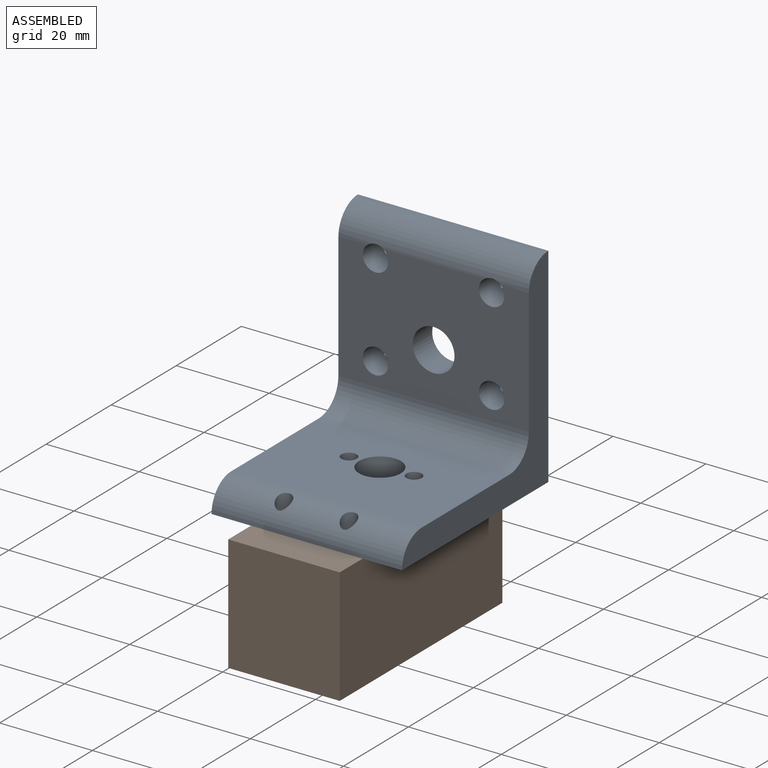
[diagram: assembled view]
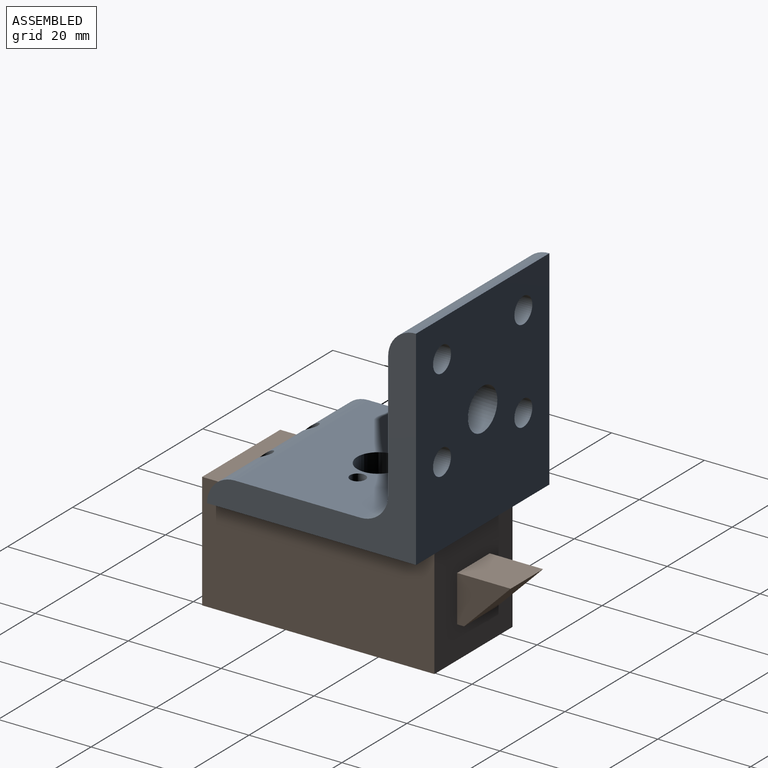
[diagram: assembled view, second angle]
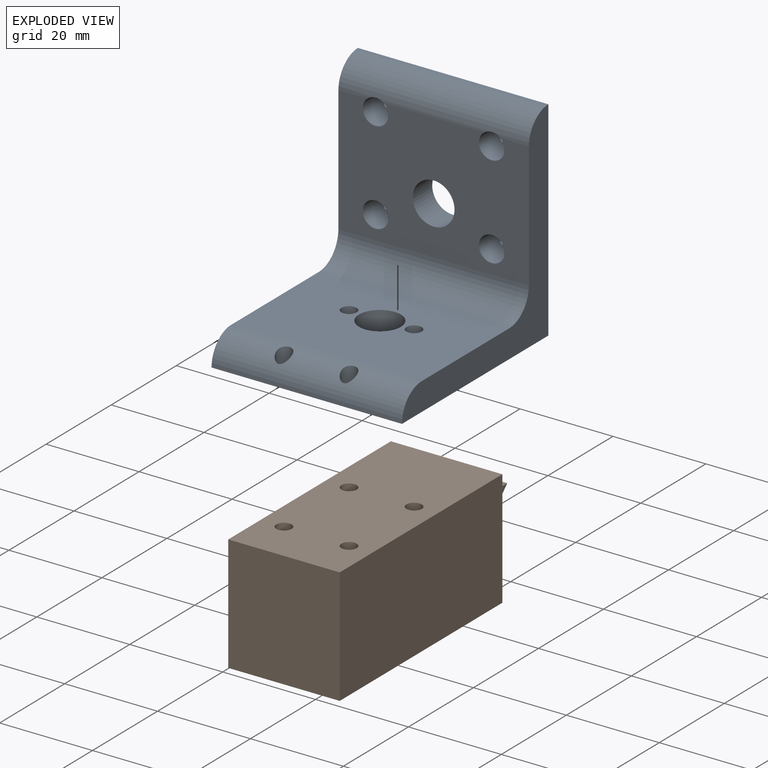
[diagram: exploded view]
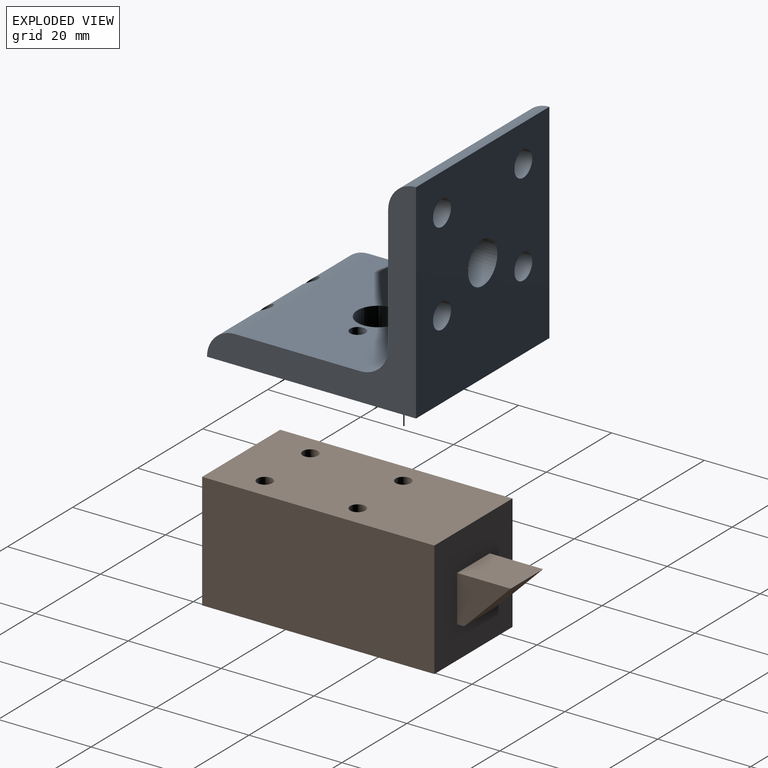
[diagram: exploded view, second angle]
ASSEMBLY  parts=2 mates=2
PART A: 19 faces, bbox 45x45x41 mm
  f0: cylinder r=6mm len=41mm, axis (0,0,-1), area 382.5mm2, adj f4,f5,f9,f10,f15,f16
  f1: cylinder r=6mm len=41mm, axis (0,0,-1), area 366.1mm2, adj f6,f7,f9,f10,f12,f13
  f2: cylinder r=4.5mm len=9mm, axis (-1,0,0), area 169.6mm2, adj f4,f5
  f3: cylinder r=4.5mm len=9mm, axis (0,-1,0), area 169.6mm2, adj f6,f7
  f4: plane 41x27mm, normal (1,0,0), area 952.2mm2, adj f0,f2,f8,f9,f10,f15,f16,f17
  f5: plane 45x41mm, normal (-1,0,0), area 1686.3mm2, adj f0,f2,f6,f9,f10,f15,f16,f17
  f6: plane 45x41mm, normal (0,-1,0), area 1747.2mm2, adj f1,f3,f5,f9,f10,f11,f12,f13
  f7: plane 41x27mm, normal (0,1,0), area 1026.3mm2, adj f1,f3,f8,f9,f10,f11,f14
  f8: cylinder r=6mm len=41mm, axis (0,0,-1), area 386.4mm2, adj f4,f7,f9,f10
  f9: plane 45x45mm, normal (0,0,1), area 496.3mm2, adj f0,f1,f4,f5,f6,f7,f8
  f10: plane 45x45mm, normal (0,0,-1), area 496.3mm2, adj f0,f1,f4,f5,f6,f7,f8
  f11: cylinder r=1.65mm len=6mm, axis (0,-1,0), area 62.2mm2, adj f6,f7
  f12: cylinder r=1.65mm len=5.85mm, axis (0,-1,0), area 52mm2, adj f1,f6
  f13: cylinder r=1.65mm len=5.85mm, axis (0,-1,0), area 52mm2, adj f1,f6
  f14: cylinder r=1.65mm len=6mm, axis (0,-1,0), area 62.2mm2, adj f6,f7
  f15: cylinder r=2.75mm len=6mm, axis (-1,0,0), area 103.6mm2, adj f0,f4,f5
  f16: cylinder r=2.75mm len=6mm, axis (-1,0,0), area 103.6mm2, adj f0,f4,f5
  f17: cylinder r=2.75mm len=6mm, axis (-1,0,0), area 103.7mm2, adj f4,f5
  f18: cylinder r=2.75mm len=6mm, axis (-1,0,0), area 103.7mm2, adj f4,f5
PART B: 19 faces, bbox 24x61.5x25 mm
  f0: plane 50x24mm, normal (0,0,-1), area 1165.8mm2, adj f1,f2,f3,f4,f12,f14,f16,f18
  f1: plane 50x25mm, normal (1,0,0), area 1250mm2, adj f0,f2,f3,f10
  f2: plane 25x24mm, normal (0,1,0), area 600mm2, adj f0,f1,f4,f10
  f3: plane 25x24mm, normal (0,-1,0), area 500mm2, adj f0,f1,f4,f5,f7,f8,f9,f10
  f4: plane 50x25mm, normal (-1,0,0), area 1250mm2, adj f0,f2,f3,f10
  f5: plane 10x1.5mm, normal (0,0,1), area 15mm2, adj f3,f6,f8,f9
  f6: plane 10x10mm, normal (0,-0.71,0.71), area 141.4mm2, adj f5,f7,f8,f9
  f7: plane 11.5x10mm, normal (0,0,-1), area 115mm2, adj f3,f6,f8,f9
  f8: plane 11.5x10mm, normal (1,0,0), area 65mm2, adj f3,f5,f6,f7
  f9: plane 11.5x10mm, normal (-1,0,0), area 65mm2, adj f3,f5,f6,f7
  f10: plane 50x24mm, normal (0,0,1), area 1200mm2, adj f1,f2,f3,f4
  f11: cone r=0mm half-angle=59deg, axis (0,0,-1), area 10mm2, adj f12
  f12: cylinder r=1.65mm len=13.5mm, axis (0,0,-1), area 140mm2, adj f0,f11
  f13: cone r=0mm half-angle=59deg, axis (0,0,-1), area 10mm2, adj f14
  f14: cylinder r=1.65mm len=13.5mm, axis (0,0,-1), area 140mm2, adj f0,f13
  f15: cone r=0mm half-angle=59deg, axis (0,0,-1), area 10mm2, adj f16
  f16: cylinder r=1.65mm len=13.5mm, axis (0,0,-1), area 140mm2, adj f0,f15
  f17: cone r=0mm half-angle=59deg, axis (0,0,-1), area 10mm2, adj f18
  f18: cylinder r=1.65mm len=13.5mm, axis (0,0,-1), area 140mm2, adj f0,f17
PLACE A rot(axis=(0.58,-0.58,-0.58),120deg) t=(0,22.31,0)mm
PLACE B rot(axis=(-1,0,0),180deg) t=(0,20.31,0)mm
MATE fastened A.f12 <-> B.f15  axis (0,0,-1) through (-7,-19.69,0)mm
MATE planar A.f6 <-> B.f0  axis (0,0,-1) through (0,0,0)mm
